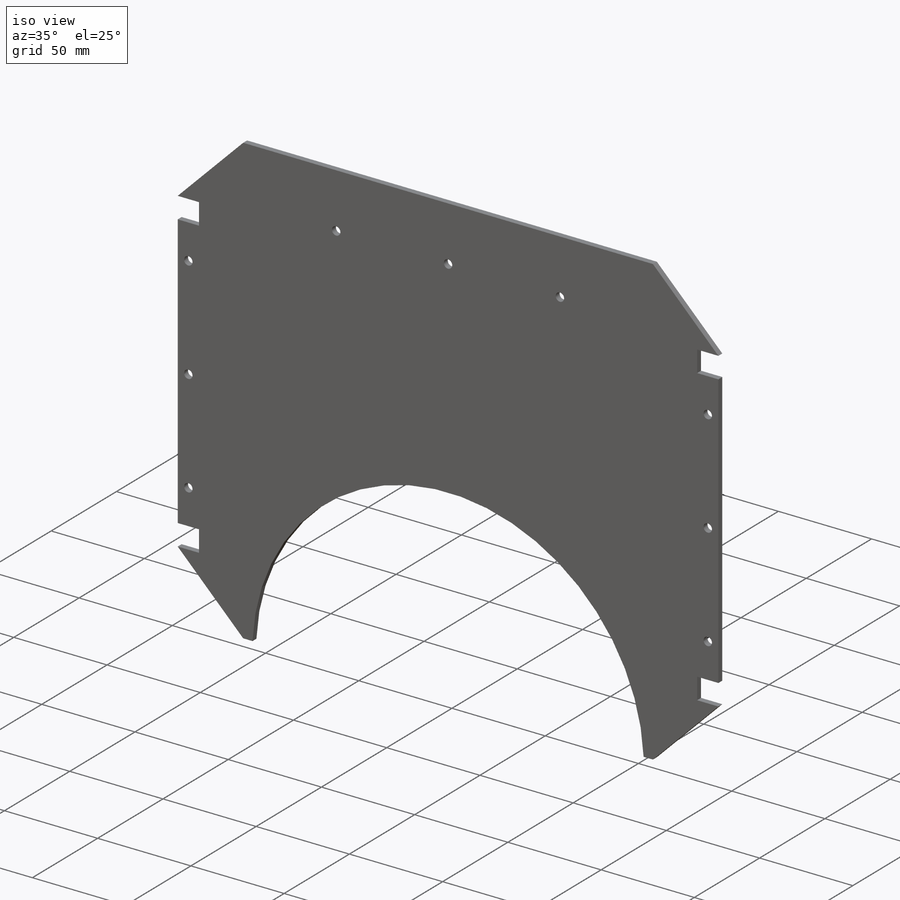
[diagram: iso view]
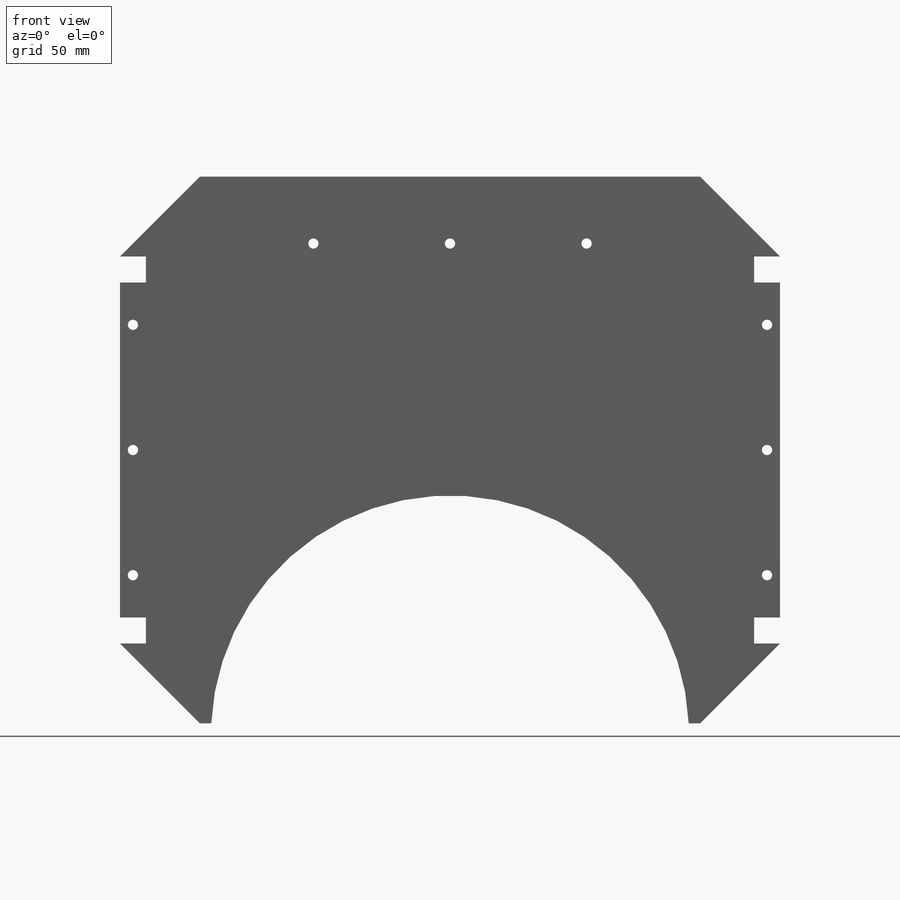
[diagram: front view]
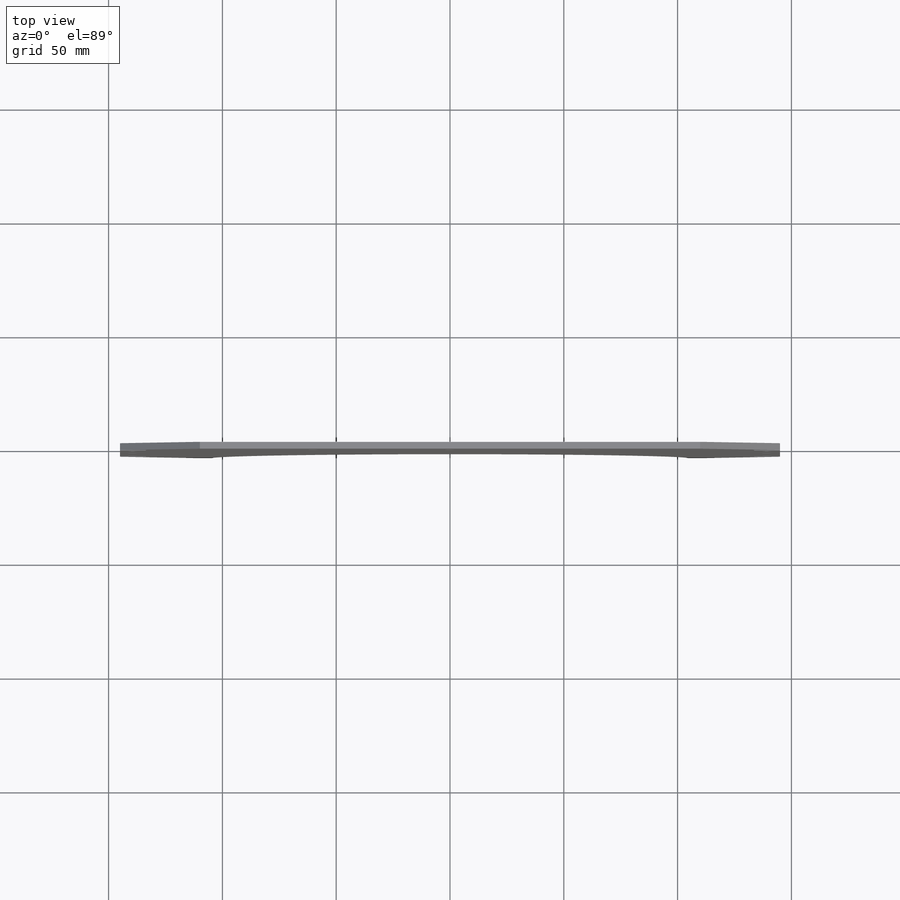
[diagram: top view]
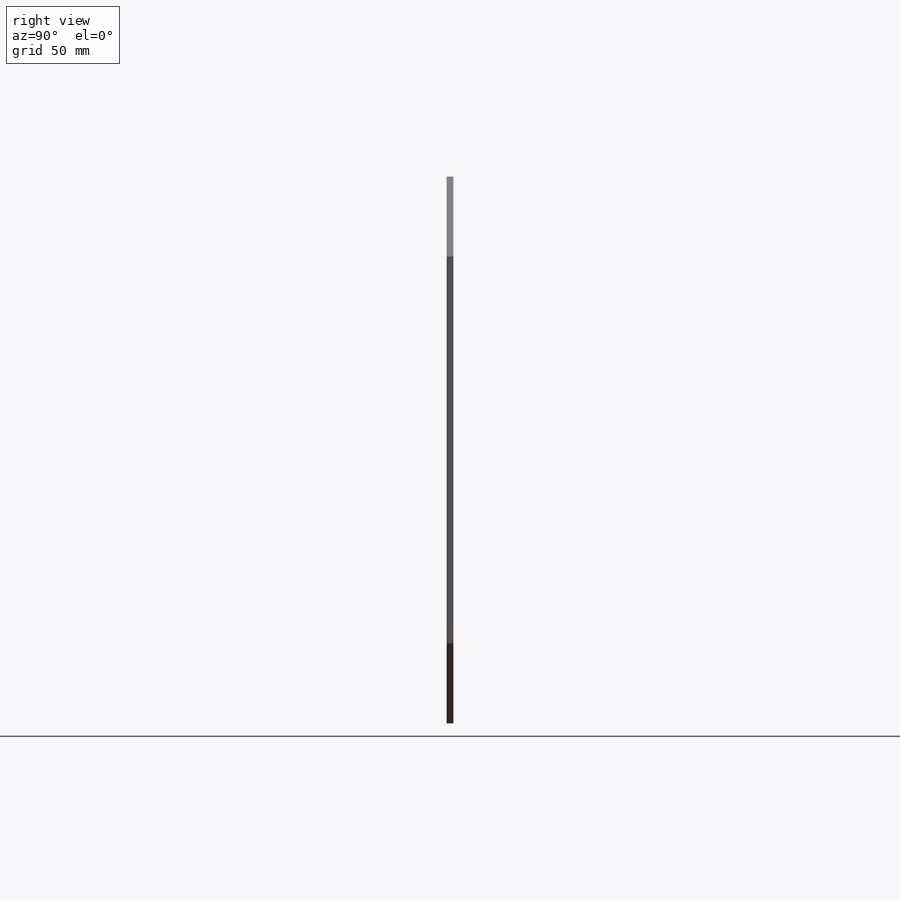
[diagram: right view]
SOLIDWORKS PART (.sldprt)
format: sldprt  version: not decoded by parser v0  size: 399,872 bytes
history: native  units: mm
features: sketch x12, plane x3, hole x3, cut_extrude x2, material x1, extrude x1 (+13 scaffold rows collapsed)
feature tree (35):
  scaffold x13  (default folders/planes/origin — collapsed)
  material  "Matériau <non spécifié>"
  plane  "Plan de face"
  plane  "Plan de dessus"
  plane  "Plan de droite"
  sketch  "Esquisse1"  dims[c1.D3=105.0mm c1.D4=105.0mm c2.D3=105.0mm c2.D8=105.0mm c2.D1=~7.199379mm c2.D2=~7.199379mm c3.D1=290.0mm c3.D2=290.0mm c3.D6=60.0mm c3.D7=60.0mm c3.D11=60.0mm c3.D4=60.0mm c3.D3=250.0mm c3.D5=5.0mm c3.D10=5.0mm c4.D11=~21.922359mm c4.D12=~21.922359mm c4.D4=85.0mm c4.D8=250.0mm c4.D9=75.0mm c5.D11=25.0mm c5.D12=37.5mm c5.D13=47.5mm c5.D14=47.5mm c5.D3=~219.772492mm]
  extrude  "Boss.-Extru.1"  Depth=3mm
  sketch  "Esquisse21"  dims[D1=11.4mm D2=11.4mm D3=5.7mm D4=5.7mm]
  cut_extrude  "Enlèv. mat.-Extru.3"  [1 undecoded]
  sketch  "Esquisse37"  dims[D1=55.0mm D2=55.0mm D3=55.0mm D4=55.0mm]
  hole  "Dégagement M41"  Diameter=4.5mm Depth=3mm
  sketch  "Esquisse39"
  sketch  "Esquisse38"  dims[hole-wizard template sketch: 61 standard entries collapsed; hole parameters above]
  sketch  "Esquisse40"  dims[D1=29.4mm D2=60.0mm D3=60.0mm]
  hole  "Dégagement M42"  Diameter=4.5mm Depth=3mm
  sketch  "Esquisse42"
  sketch  "Esquisse41"  dims[hole-wizard template sketch: 61 standard entries collapsed; hole parameters above]
  sketch  "Esquisse43"  dims[D1=30.0mm D2=35.0mm D3=30.0mm D4=35.0mm D5=30.0mm D6=35.0mm D7=30.0mm D8=35.0mm]
  hole  "Dégagement M201"  Diameter=22mm Depth=3mm
  sketch  "Esquisse45"
  sketch  "Esquisse44"  dims[hole-wizard template sketch: 59 standard entries collapsed; hole parameters kept: c18.Diamètre du perçage jusqu'au prochain=22.0mm c18.Profondeur du perçage jusqu'au prochain=3.0mm]
  sketch  "Esquisse46"  dims[D4=20.0mm D1=90.0mm D2=145.0mm D3=50.0mm]
  cut_extrude  "Enlèv. mat.-Extru.4"  Depth=10mm
decode coverage: 14 of 18 modeling features carry decoded parameters
note: ~ marks probable driven/reference dimensions
note: 1 parameter value undecoded
note: suppression state not decoded; provenance and decode notes live in map.json
